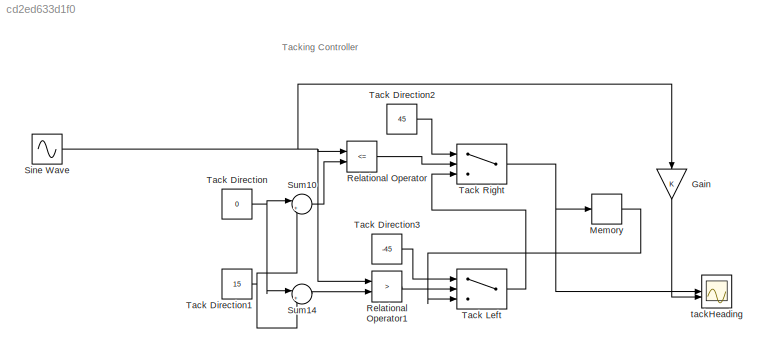
MODEL slx_cd2ed633d1f0
KIND model
CONFIG AbsTol = auto
CONFIG EnableMultiTasking = off
CONFIG FixedStep = 0.01
CONFIG MaxStep = auto
CONFIG MinStep = auto
CONFIG RelTol = 1e-3
CONFIG SampleTimeConstraint = Unconstrained
CONFIG SolverName = FixedStepAuto
CONFIG StartTime = 0.0
CONFIG StopTime = 20
BLOCK [Gain] Gain
  NameLocation = left
BLOCK [Memory] Memory
BLOCK [RelationalOperator] Relational Operator
  InputSameDT = off
  Operator = <=
  OutDataTypeStr = boolean
  RndMeth = Simplest
BLOCK [RelationalOperator] Relational Operator1
  InputSameDT = off
  Operator = >
  OutDataTypeStr = boolean
  RndMeth = Simplest
BLOCK [Sin] Sine Wave
  Amplitude = 17.5
  SampleTime = 0
BLOCK [Sum] Sum10
  Inputs = |+-
BLOCK [Sum] Sum14
  Inputs = |++
BLOCK [Constant] Tack Direction
  NameLocation = top
  Value = 0
BLOCK [Constant] Tack Direction1
  NameLocation = top
  Value = 15
BLOCK [Constant] Tack Direction2
  NameLocation = top
  Value = 45
BLOCK [Constant] Tack Direction3
  NameLocation = top
  Value = -45
BLOCK [Switch] Tack Left
  Criteria = u2 > Threshold
  InputSameDT = off
  SaturateOnIntegerOverflow = off
BLOCK [Switch] Tack Right
  Criteria = u2 > Threshold
  InputSameDT = off
  SaturateOnIntegerOverflow = off
BLOCK [Scope] tackHeading
  Floating = off
  NameLocation = right
  NumInputPorts = 2
  ScopeSpecificationString = Simulink.scopes.TimeScopeBlockCfg('CurrentConfiguration', extmgr.ConfigurationSet(extmgr.Configuration('Core','General UI',true,'FigureColor',[1 1 1]),extmgr.Configuration('Core','Source UI',true),extmgr.Configuration('Sources','WiredSimulink',true),extmgr.Configuration('Visuals','Time Domain',true,'SerializedDisplays',{struct('MinYLimReal','-56.25','MaxYLimReal','56.25','YLabelReal','','MinYLimMa...<+2368ch>
ANNOTATION (root): Tacking Controller
LINE Gain:1 -> tackHeading:2
LINE Memory:1 -> Tack Left:3
LINE Relational Operator1:1 -> Tack Left:2
LINE Relational Operator:1 -> Tack Right:2
NET Sine Wave:1 -> Gain:1, Relational Operator1:1, Relational Operator:1
LINE Sum10:1 -> Relational Operator:2
LINE Sum14:1 -> Relational Operator1:2
NET Tack Direction1:1 -> Sum10:2, Sum14:2
LINE Tack Direction2:1 -> Tack Right:1
LINE Tack Direction3:1 -> Tack Left:1
NET Tack Direction:1 -> Sum10:1, Sum14:1
LINE Tack Left:1 -> Tack Right:3
NET Tack Right:1 -> Memory:1, tackHeading:1
note: NET lines group one-source signal fan-out (src -> all destinations, sorted); 1:1 wires keep LINE
